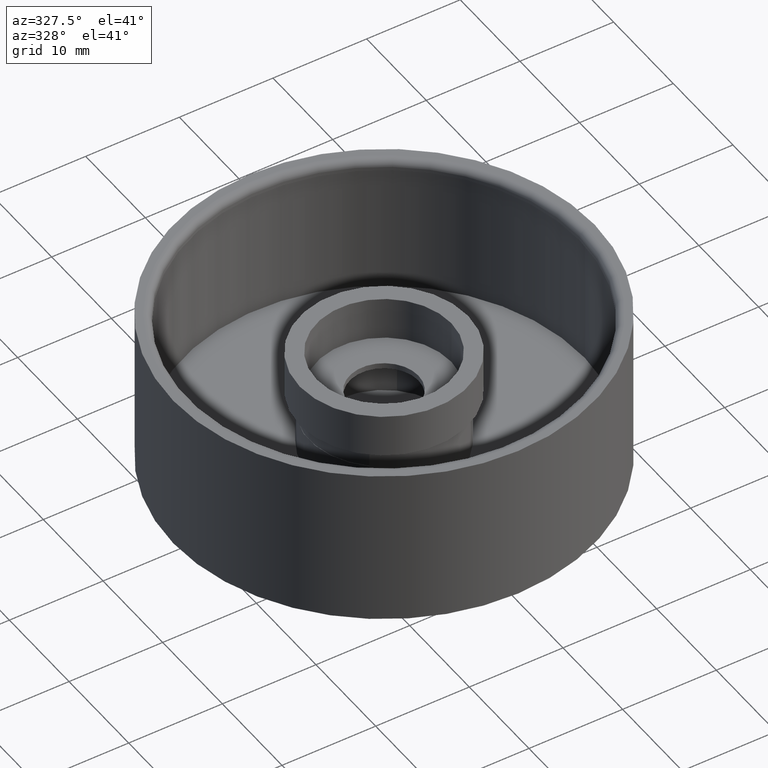
[diagram: clean part render]
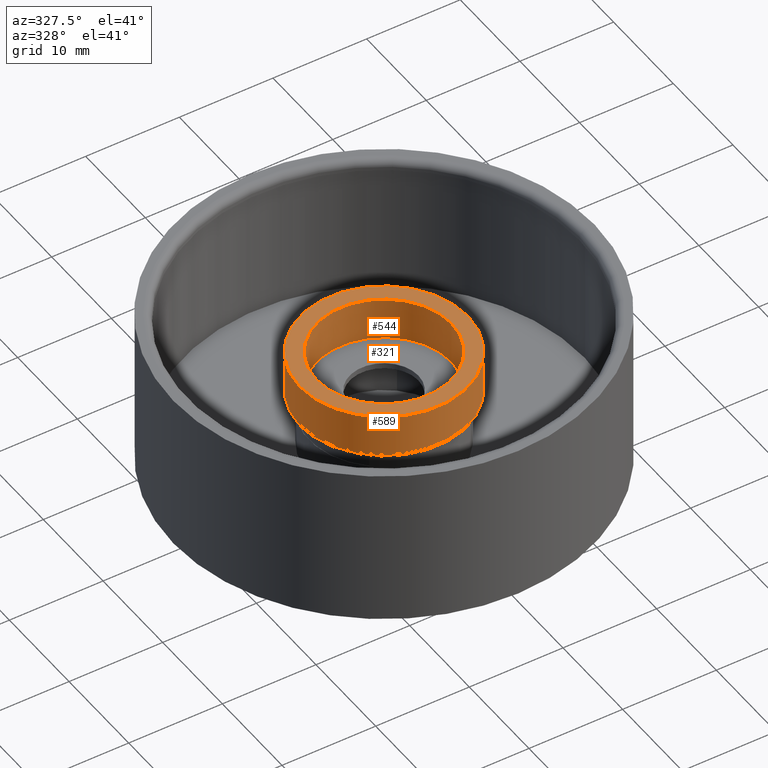
[diagram: same view with one multi-face feature highlighted, each face labeled with its STEP entity id]
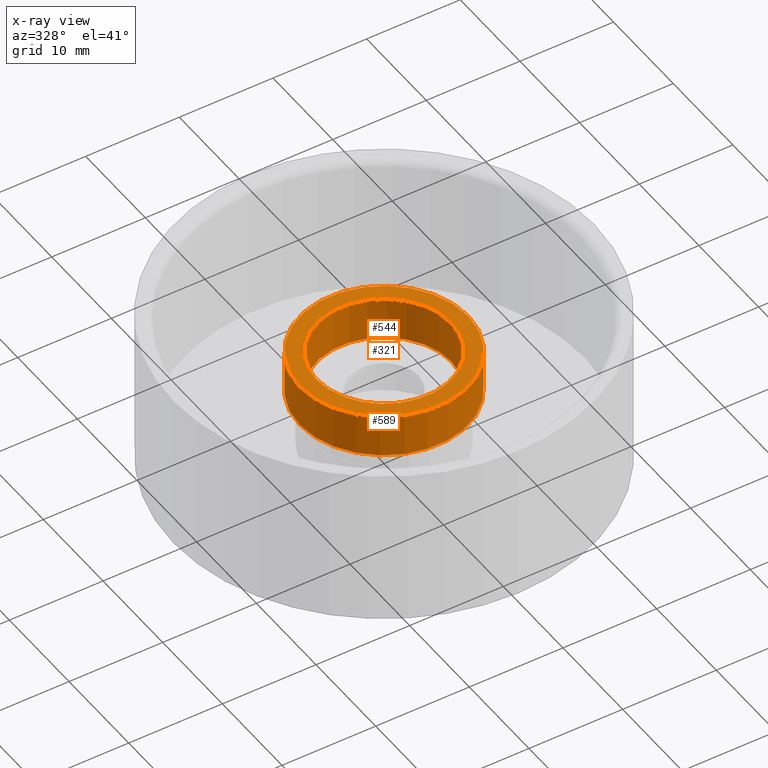
[diagram: x-ray of the same camera — body ghosted, the whole feature saturated]
A machine part, auxiliary view. The highlighted faces form ONE feature: a stepped (counterbored) hole: 2 coaxial cylindrical walls of radii 7.2 -> 9 mm joined by 1 annular planar shoulder face(s). The faces share edges in the B-rep.
The next image is the same camera in x-ray: the body ghosted and the whole hole feature saturated, so the bore chain is visible through the body.
Their STEP definitions:
[1] entity #589 (Cylinder):
#1 = CARTESIAN_POINT ( 'NONE',  ( 0.000000000000000000, 0.000000000000000000, 0.4876968503937009203 ) ) ;
#26 = CARTESIAN_POINT ( 'NONE',  ( 0.3543307086614173040, 0.000000000000000000, 0.4876968503937009203 ) ) ;
#106 = AXIS2_PLACEMENT_3D ( 'NONE', #1, #800, #229 ) ;
#110 = EDGE_LOOP ( 'NONE', ( #325 ) ) ;
#114 = CARTESIAN_POINT ( 'NONE',  ( 0.000000000000000000, 0.000000000000000000, 0.3065944881889763329 ) ) ;
#188 = DIRECTION ( 'NONE',  ( 0.000000000000000000, 0.000000000000000000, 1.000000000000000000 ) ) ;
#199 = EDGE_LOOP ( 'NONE', ( #853 ) ) ;
#229 = DIRECTION ( 'NONE',  ( -1.000000000000000000, 0.000000000000000000, 0.000000000000000000 ) ) ;
#325 = ORIENTED_EDGE ( 'NONE', *, *, #858, .F. ) ;
#353 = DIRECTION ( 'NONE',  ( 0.000000000000000000, 0.000000000000000000, 1.000000000000000000 ) ) ;
#456 = AXIS2_PLACEMENT_3D ( 'NONE', #114, #188, #550 ) ;
#460 = EDGE_CURVE ( 'NONE', #658, #658, #649, .T. ) ;
#550 = DIRECTION ( 'NONE',  ( 1.000000000000000000, 0.000000000000000000, 0.000000000000000000 ) ) ;
#579 = DIRECTION ( 'NONE',  ( 1.000000000000000000, 0.000000000000000000, 0.000000000000000000 ) ) ;
#589 = ADVANCED_FACE ( 'NONE', ( #678, #607 ), #897, .T. ) ;
#607 = FACE_OUTER_BOUND ( 'NONE', #199, .T. ) ;
#646 = CARTESIAN_POINT ( 'NONE',  ( 0.000000000000000000, 0.000000000000000000, 0.4876968503937009203 ) ) ;
#649 = CIRCLE ( 'NONE', #456, 0.3543307086614173040 ) ;
#652 = CIRCLE ( 'NONE', #791, 0.3543307086614173040 ) ;
#658 = VERTEX_POINT ( 'NONE', #876 ) ;
#678 = FACE_OUTER_BOUND ( 'NONE', #110, .T. ) ;
#751 = VERTEX_POINT ( 'NONE', #26 ) ;
#791 = AXIS2_PLACEMENT_3D ( 'NONE', #646, #353, #579 ) ;
#800 = DIRECTION ( 'NONE',  ( -0.000000000000000000, -0.000000000000000000, -1.000000000000000000 ) ) ;
#853 = ORIENTED_EDGE ( 'NONE', *, *, #460, .T. ) ;
#858 = EDGE_CURVE ( 'NONE', #751, #751, #652, .T. ) ;
#876 = CARTESIAN_POINT ( 'NONE',  ( 0.3543307086614173040, 0.000000000000000000, 0.3065944881889763329 ) ) ;
#897 = CYLINDRICAL_SURFACE ( 'NONE', #106, 0.3543307086614173040 ) ;
[2] entity #544 (Cylinder):
#4 = EDGE_LOOP ( 'NONE', ( #74 ) ) ;
#14 = CARTESIAN_POINT ( 'NONE',  ( 0.000000000000000000, 0.000000000000000000, 0.3065944881889763329 ) ) ;
#74 = ORIENTED_EDGE ( 'NONE', *, *, #354, .T. ) ;
#92 = DIRECTION ( 'NONE',  ( 1.000000000000000000, 0.000000000000000000, 0.000000000000000000 ) ) ;
#183 = EDGE_CURVE ( 'NONE', #583, #583, #227, .T. ) ;
#203 = CARTESIAN_POINT ( 'NONE',  ( 0.000000000000000000, 0.000000000000000000, 0.4876968503937009203 ) ) ;
#227 = CIRCLE ( 'NONE', #592, 0.2834645669291338543 ) ;
#263 = CARTESIAN_POINT ( 'NONE',  ( 0.000000000000000000, 0.000000000000000000, 0.4876968503937009203 ) ) ;
#328 = DIRECTION ( 'NONE',  ( 1.000000000000000000, 0.000000000000000000, 0.000000000000000000 ) ) ;
#354 = EDGE_CURVE ( 'NONE', #729, #729, #365, .T. ) ;
#365 = CIRCLE ( 'NONE', #864, 0.2834645669291338543 ) ;
#371 = CARTESIAN_POINT ( 'NONE',  ( 0.2834645669291338543, 0.000000000000000000, 0.4876968503937009203 ) ) ;
#421 = FACE_OUTER_BOUND ( 'NONE', #913, .T. ) ;
#472 = AXIS2_PLACEMENT_3D ( 'NONE', #203, #497, #789 ) ;
#497 = DIRECTION ( 'NONE',  ( -0.000000000000000000, -0.000000000000000000, -1.000000000000000000 ) ) ;
#544 = ADVANCED_FACE ( 'NONE', ( #943, #421 ), #924, .F. ) ;
#572 = ORIENTED_EDGE ( 'NONE', *, *, #183, .T. ) ;
#583 = VERTEX_POINT ( 'NONE', #871 ) ;
#592 = AXIS2_PLACEMENT_3D ( 'NONE', #14, #745, #92 ) ;
#729 = VERTEX_POINT ( 'NONE', #371 ) ;
#745 = DIRECTION ( 'NONE',  ( -0.000000000000000000, -0.000000000000000000, -1.000000000000000000 ) ) ;
#789 = DIRECTION ( 'NONE',  ( -1.000000000000000000, 0.000000000000000000, 0.000000000000000000 ) ) ;
#864 = AXIS2_PLACEMENT_3D ( 'NONE', #263, #907, #328 ) ;
#871 = CARTESIAN_POINT ( 'NONE',  ( 0.2834645669291338543, 0.000000000000000000, 0.3065944881889763329 ) ) ;
#907 = DIRECTION ( 'NONE',  ( 0.000000000000000000, 0.000000000000000000, 1.000000000000000000 ) ) ;
#913 = EDGE_LOOP ( 'NONE', ( #572 ) ) ;
#924 = CYLINDRICAL_SURFACE ( 'NONE', #472, 0.2834645669291338543 ) ;
#943 = FACE_OUTER_BOUND ( 'NONE', #4, .T. ) ;
[3] entity #321 (Plane):
#26 = CARTESIAN_POINT ( 'NONE',  ( 0.3543307086614173040, 0.000000000000000000, 0.4876968503937009203 ) ) ;
#48 = DIRECTION ( 'NONE',  ( 0.000000000000000000, 0.000000000000000000, 1.000000000000000000 ) ) ;
#170 = FACE_OUTER_BOUND ( 'NONE', #248, .T. ) ;
#248 = EDGE_LOOP ( 'NONE', ( #513 ) ) ;
#263 = CARTESIAN_POINT ( 'NONE',  ( 0.000000000000000000, 0.000000000000000000, 0.4876968503937009203 ) ) ;
#272 = PLANE ( 'NONE',  #350 ) ;
#321 = ADVANCED_FACE ( 'NONE', ( #170, #749 ), #272, .T. ) ;
#328 = DIRECTION ( 'NONE',  ( 1.000000000000000000, 0.000000000000000000, 0.000000000000000000 ) ) ;
#350 = AXIS2_PLACEMENT_3D ( 'NONE', #405, #48, #621 ) ;
#353 = DIRECTION ( 'NONE',  ( 0.000000000000000000, 0.000000000000000000, 1.000000000000000000 ) ) ;
#354 = EDGE_CURVE ( 'NONE', #729, #729, #365, .T. ) ;
#365 = CIRCLE ( 'NONE', #864, 0.2834645669291338543 ) ;
#371 = CARTESIAN_POINT ( 'NONE',  ( 0.2834645669291338543, 0.000000000000000000, 0.4876968503937009203 ) ) ;
#405 = CARTESIAN_POINT ( 'NONE',  ( 0.000000000000000000, 0.000000000000000000, 0.4876968503937009203 ) ) ;
#513 = ORIENTED_EDGE ( 'NONE', *, *, #858, .T. ) ;
#579 = DIRECTION ( 'NONE',  ( 1.000000000000000000, 0.000000000000000000, 0.000000000000000000 ) ) ;
#621 = DIRECTION ( 'NONE',  ( 1.000000000000000000, 0.000000000000000000, -0.000000000000000000 ) ) ;
#626 = ORIENTED_EDGE ( 'NONE', *, *, #354, .F. ) ;
#646 = CARTESIAN_POINT ( 'NONE',  ( 0.000000000000000000, 0.000000000000000000, 0.4876968503937009203 ) ) ;
#652 = CIRCLE ( 'NONE', #791, 0.3543307086614173040 ) ;
#729 = VERTEX_POINT ( 'NONE', #371 ) ;
#749 = FACE_BOUND ( 'NONE', #847, .T. ) ;
#751 = VERTEX_POINT ( 'NONE', #26 ) ;
#791 = AXIS2_PLACEMENT_3D ( 'NONE', #646, #353, #579 ) ;
#847 = EDGE_LOOP ( 'NONE', ( #626 ) ) ;
#858 = EDGE_CURVE ( 'NONE', #751, #751, #652, .T. ) ;
#864 = AXIS2_PLACEMENT_3D ( 'NONE', #263, #907, #328 ) ;
#907 = DIRECTION ( 'NONE',  ( 0.000000000000000000, 0.000000000000000000, 1.000000000000000000 ) ) ;